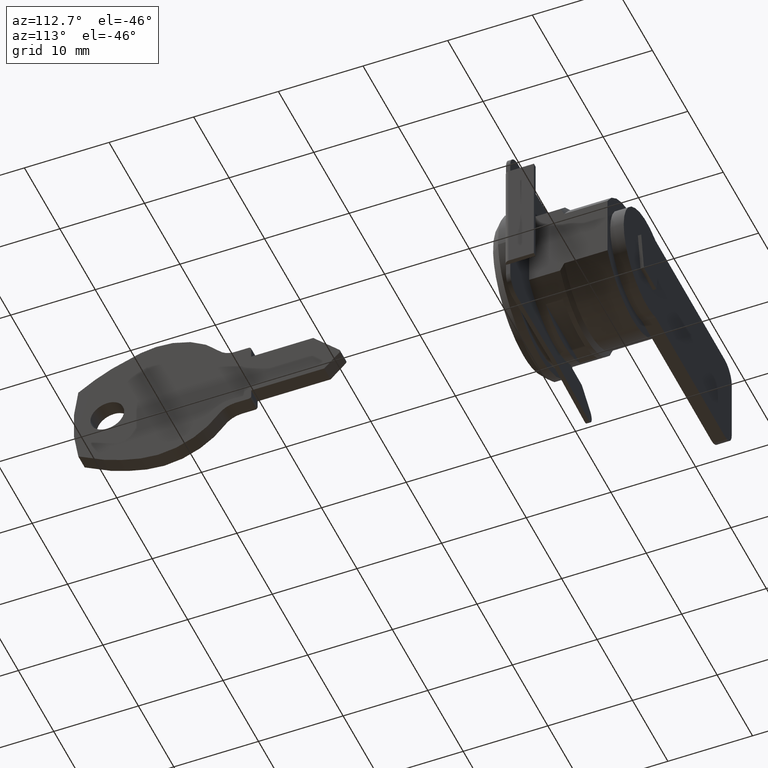
[diagram: clean part render]
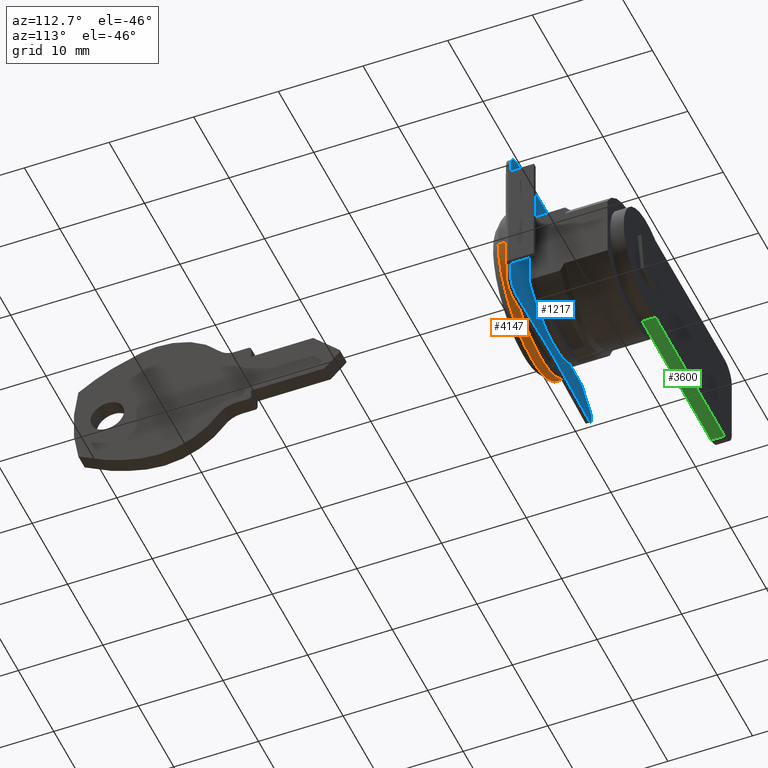
[diagram: same view with three faces highlighted in distinct colors, each labeled with its STEP entity id]
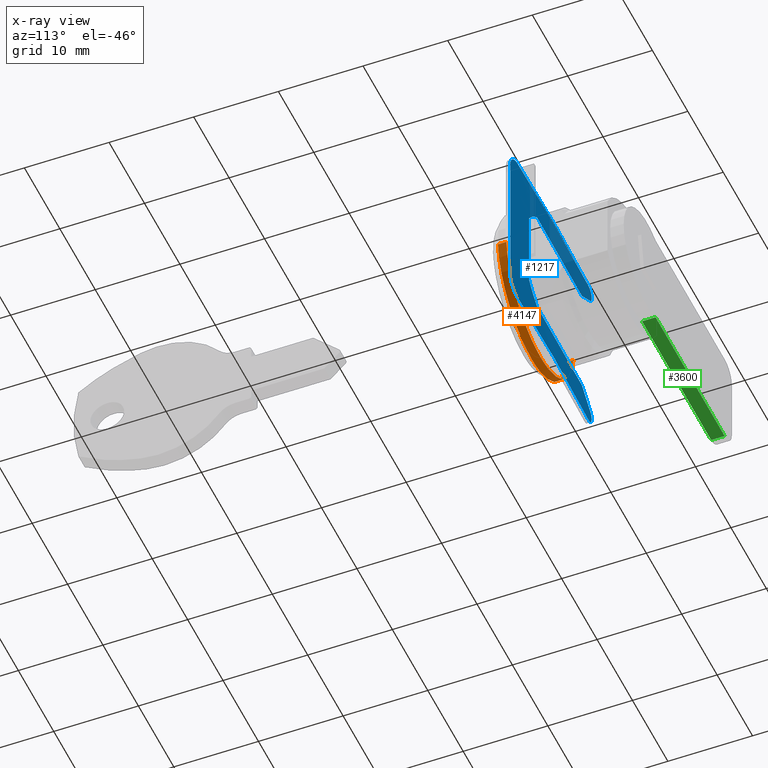
[diagram: x-ray of the same camera — body ghosted, the three highlighted faces saturated]
A machine part, auxiliary view with three faces highlighted in distinct colors.
The next image is the same camera in x-ray (body ghosted, the three faces saturated) — at least one of them is partly hidden behind the body in this view.
Their STEP definitions:

[orange] entity #4147 — the highlighted face is a freeform B-spline surface patch.
#4038=CARTESIAN_POINT('',(0.025000000000003,9.437957337639171,-1.083956315033412));
#4039=CARTESIAN_POINT('',(0.025000000000003,8.529243949567675,-8.996081619175367));
#4040=CARTESIAN_POINT('',(0.025000000000003,0.579961125581135,-9.482280585007626));
#4041=CARTESIAN_POINT('',(0.025000000000003,-8.902319459426492,-10.062241710588760));
#4042=CARTESIAN_POINT('',(0.025000000000003,-9.482280585007626,-0.579961125581135));
#4043=CARTESIAN_POINT('',(-1.025625000000132,9.437957337639171,-1.083956315033412));
#4044=CARTESIAN_POINT('',(-1.025625000000132,8.529243949567675,-8.996081619175367));
#4045=CARTESIAN_POINT('',(-1.025625000000132,0.579961125581135,-9.482280585007626));
#4046=CARTESIAN_POINT('',(-1.025625000000132,-8.902319459426492,-10.062241710588760));
#4047=CARTESIAN_POINT('',(-1.025625000000132,-9.482280585007626,-0.579961125581135));
#4055=(BOUNDED_SURFACE()B_SPLINE_SURFACE(2,1,((#4038,#4043),(#4039,#4044),(#4040,#4045),(#4041,#4046),(#4042,#4047)),.UNSPECIFIED.,.F.,.F.,.U.)B_SPLINE_SURFACE_WITH_KNOTS((3,2,3),(2,2),(0.0,13.851301525756140,29.591416895933559),(0.0,1.0),.UNSPECIFIED.)GEOMETRIC_REPRESENTATION_ITEM()RATIONAL_B_SPLINE_SURFACE(((0.938140952186599,0.938140952186599),(0.742253967444162,0.742253967444162),(1.0,1.0),(0.707106781186548,0.707106781186548),(1.0,1.0)))REPRESENTATION_ITEM('')SURFACE());
#4056=CARTESIAN_POINT('',(-1.000000000000128,9.437957337632014,-1.083956315095217));
#4057=VERTEX_POINT('',#4056);
#4058=CARTESIAN_POINT('',(-1.000000000000128,0.0,-9.499999999999771));
#4059=VERTEX_POINT('',#4058);
#4060=CARTESIAN_POINT('',(-1.000000000000128,9.437957337632014,-1.083956315095217));
#4061=CARTESIAN_POINT('',(-1.000000000000128,8.471368554217783,-9.499999999999771));
#4062=CARTESIAN_POINT('',(-1.000000000000128,0.0,-9.499999999999771));
#4070=(BOUNDED_CURVE()B_SPLINE_CURVE(2,(#4060,#4061,#4062),.UNSPECIFIED.,.F.,.U.)B_SPLINE_CURVE_WITH_KNOTS((3,3),(0.269767755878826,0.500000000000000),.UNSPECIFIED.)CURVE()GEOMETRIC_REPRESENTATION_ITEM()RATIONAL_B_SPLINE_CURVE((0.957343736456291,0.730266147778819,1.0))REPRESENTATION_ITEM(''));
#4071=EDGE_CURVE('',#4057,#4059,#4070,.T.);
#4072=ORIENTED_EDGE('',*,*,#4071,.F.);
#4073=CARTESIAN_POINT('',(3.328394E-017,9.437957337633479,-1.083956315083453));
#4074=VERTEX_POINT('',#4073);
#4075=CARTESIAN_POINT('',(3.328394E-017,9.437957337633479,-1.083956315083453));
#4076=CARTESIAN_POINT('',(-1.000000000000128,9.437957337632014,-1.083956315095217));
#4077=QUASI_UNIFORM_CURVE('',1,(#4075,#4076),.UNSPECIFIED.,.F.,.U.);
#4078=EDGE_CURVE('',#4074,#4057,#4077,.T.);
#4079=ORIENTED_EDGE('',*,*,#4078,.F.);
#4080=CARTESIAN_POINT('',(0.0,0.0,-9.500000000000000));
#4081=VERTEX_POINT('',#4080);
#4082=CARTESIAN_POINT('',(3.328394E-017,9.437957337633479,-1.083956315083452));
#4083=CARTESIAN_POINT('',(0.0,8.471368554239268,-9.499999999999998));
#4084=CARTESIAN_POINT('',(0.0,0.0,-9.500000000000000));
#4092=(BOUNDED_CURVE()B_SPLINE_CURVE(2,(#4082,#4083,#4084),.UNSPECIFIED.,.F.,.U.)B_SPLINE_CURVE_WITH_KNOTS((3,3),(0.269767755878404,0.500000000000000),.UNSPECIFIED.)CURVE()GEOMETRIC_REPRESENTATION_ITEM()RATIONAL_B_SPLINE_CURVE((0.957343736457124,0.730266147778324,1.0))REPRESENTATION_ITEM(''));
#4093=EDGE_CURVE('',#4074,#4081,#4092,.T.);
#4094=ORIENTED_EDGE('',*,*,#4093,.T.);
#4095=CARTESIAN_POINT('',(3.469447E-017,-9.482280585005249,-0.579961125620899));
#4096=VERTEX_POINT('',#4095);
#4097=CARTESIAN_POINT('',(0.0,0.0,-9.500000000000000));
#4098=CARTESIAN_POINT('',(0.0,-8.936707635529032,-9.500000000000000));
#4099=CARTESIAN_POINT('',(3.469447E-017,-9.482280585005249,-0.579961125620899));
#4107=(BOUNDED_CURVE()B_SPLINE_CURVE(2,(#4097,#4098,#4099),.UNSPECIFIED.,.F.,.U.)B_SPLINE_CURVE_WITH_KNOTS((3,3),(0.500000000000000,0.739332962240522),.UNSPECIFIED.)CURVE()GEOMETRIC_REPRESENTATION_ITEM()RATIONAL_B_SPLINE_CURVE((1.0,0.719603993284861,0.976072041670101))REPRESENTATION_ITEM(''));
#4108=EDGE_CURVE('',#4081,#4096,#4107,.T.);
#4109=ORIENTED_EDGE('',*,*,#4108,.T.);
#4110=CARTESIAN_POINT('',(-1.000000000000128,-9.482280633114877,-0.579960339032487));
#4111=VERTEX_POINT('',#4110);
#4112=CARTESIAN_POINT('',(3.469447E-017,-9.482280585005249,-0.579961125620899));
#4113=CARTESIAN_POINT('',(-1.000000000000128,-9.482280633114877,-0.579960339032487));
#4114=QUASI_UNIFORM_CURVE('',1,(#4112,#4113),.UNSPECIFIED.,.F.,.U.);
#4115=EDGE_CURVE('',#4096,#4111,#4114,.T.);
#4116=ORIENTED_EDGE('',*,*,#4115,.T.);
#4117=CARTESIAN_POINT('',(-0.999999999998293,-9.470714670465206,-0.745361409428668));
#4118=VERTEX_POINT('',#4117);
#4119=CARTESIAN_POINT('',(-0.999999999998293,-9.470714670465206,-0.745361409428668));
#4120=CARTESIAN_POINT('',(-1.000000000000128,-9.477219402771846,-0.662710948966291));
#4121=CARTESIAN_POINT('',(-1.000000000000128,-9.482280633114877,-0.579960339032487));
#4129=(BOUNDED_CURVE()B_SPLINE_CURVE(2,(#4119,#4120,#4121),.UNSPECIFIED.,.F.,.U.)B_SPLINE_CURVE_WITH_KNOTS((3,3),(0.736331300632260,0.739332990867245),.UNSPECIFIED.)CURVE()GEOMETRIC_REPRESENTATION_ITEM()RATIONAL_B_SPLINE_CURVE((0.969723356170757,0.972855505434191,0.976072103022625))REPRESENTATION_ITEM(''));
#4130=EDGE_CURVE('',#4118,#4111,#4129,.T.);
#4131=ORIENTED_EDGE('',*,*,#4130,.F.);
#4132=CARTESIAN_POINT('',(-1.000000000000128,0.0,-9.499999999999771));
#4133=CARTESIAN_POINT('',(-1.000000000000128,-8.781709670726698,-9.499999999999771));
#4134=CARTESIAN_POINT('',(-0.999999999998293,-9.470714670465206,-0.745361409428668));
#4142=(BOUNDED_CURVE()B_SPLINE_CURVE(2,(#4132,#4133,#4134),.UNSPECIFIED.,.F.,.U.)B_SPLINE_CURVE_WITH_KNOTS((3,3),(0.500000000000000,0.736331300632260),.UNSPECIFIED.)CURVE()GEOMETRIC_REPRESENTATION_ITEM()RATIONAL_B_SPLINE_CURVE((1.0,0.723120658605791,0.969723356170757))REPRESENTATION_ITEM(''));
#4143=EDGE_CURVE('',#4059,#4118,#4142,.T.);
#4144=ORIENTED_EDGE('',*,*,#4143,.F.);
#4145=EDGE_LOOP('',(#4072,#4079,#4094,#4109,#4116,#4131,#4144));
#4146=FACE_OUTER_BOUND('',#4145,.T.);
#4147=ADVANCED_FACE('',(#4146),#4055,.T.);

[blue] entity #1217 — the highlighted face is a freeform B-spline surface patch.
#155=CARTESIAN_POINT('',(1.533278711939535,10.0,10.500000000000000));
#156=VERTEX_POINT('',#155);
#164=CARTESIAN_POINT('',(1.500000000000525,11.0,9.500000000000000));
#165=VERTEX_POINT('',#164);
#166=CARTESIAN_POINT('',(1.533278711939535,10.0,10.500000000000000));
#167=CARTESIAN_POINT('',(1.529856346436006,10.107742023837600,10.500000000009930));
#168=CARTESIAN_POINT('',(1.526473100540746,10.212593911290000,10.483029653974940));
#169=CARTESIAN_POINT('',(1.522302234544356,10.340076613222710,10.440781118270230));
#170=CARTESIAN_POINT('',(1.521474326880014,10.365290613249790,10.431276298007999));
#171=CARTESIAN_POINT('',(1.519854065763446,10.414471154806870,10.410453920703040));
#172=CARTESIAN_POINT('',(1.519058333823623,10.438541051469450,10.399103410184670));
#173=CARTESIAN_POINT('',(1.516714544695119,10.509213983307539,10.362277839583919));
#174=CARTESIAN_POINT('',(1.515209569935022,10.554290178656380,10.334046646901070));
#175=CARTESIAN_POINT('',(1.513044938715569,10.618764973222770,10.286032425010450));
#176=CARTESIAN_POINT('',(1.512337516154372,10.639772728240700,10.269029212259390));
#177=CARTESIAN_POINT('',(1.510979768827128,10.679986887427420,10.233711620663509));
#178=CARTESIAN_POINT('',(1.510326308486251,10.699286978266180,10.215334268571141));
#179=CARTESIAN_POINT('',(1.508441814628657,10.754813971217921,10.158088969705300));
#180=CARTESIAN_POINT('',(1.507286181952489,10.788682646486830,10.117121183908999));
#181=CARTESIAN_POINT('',(1.505711073536585,10.834676683710819,10.051387304182841));
#182=CARTESIAN_POINT('',(1.505210502433258,10.849262188280370,10.028650447815780));
#183=CARTESIAN_POINT('',(1.504278106158944,10.876384374352281,9.982356506087642));
#184=CARTESIAN_POINT('',(1.503845685468256,10.888938778164970,9.958795858534341));
#185=CARTESIAN_POINT('',(1.502648297834012,10.923653937255709,9.886902465329669));
#186=CARTESIAN_POINT('',(1.501982615896451,10.942885072051039,9.837365842889790));
#187=CARTESIAN_POINT('',(1.500923111635423,10.973447903958821,9.735046402161483));
#188=CARTESIAN_POINT('',(1.500530627378306,10.984740857365280,9.681995021680770));
#189=CARTESIAN_POINT('',(1.500097062688470,10.997211155596890,9.586245177449424));
#190=CARTESIAN_POINT('',(1.499999865615068,11.000004229441370,9.543195670827748));
#191=CARTESIAN_POINT('',(1.500000000000525,11.0,9.500000000000000));
#192=B_SPLINE_CURVE_WITH_KNOTS('',3,(#166,#167,#168,#169,#170,#171,#172,#173,#174,#175,#176,#177,#178,#179,#180,#181,#182,#183,#184,#185,#186,#187,#188,#189,#190,#191),.UNSPECIFIED.,.F.,.U.,(4,2,2,2,2,2,2,2,2,2,2,2,4),(0.0,0.124999999999996,0.156249999999996,0.187499999999995,0.249999999999995,0.281249999999994,0.312499999999992,0.374999999999989,0.406249999999989,0.437499999999988,0.499999999999990,0.562499999999991,0.613240821378535),.UNSPECIFIED.);
#193=EDGE_CURVE('',#156,#165,#192,.T.);
#252=CARTESIAN_POINT('',(1.500000000000475,11.0,-9.500000000000000));
#253=VERTEX_POINT('',#252);
#269=CARTESIAN_POINT('',(1.533278711939590,10.0,-10.500000000000000));
#270=VERTEX_POINT('',#269);
#271=CARTESIAN_POINT('',(1.500000000000475,11.0,-9.500000000000000));
#272=CARTESIAN_POINT('',(1.500000025624124,10.999999272886100,-9.516227616813300));
#273=CARTESIAN_POINT('',(1.500013728389029,10.999605422694881,-9.532485281798905));
#274=CARTESIAN_POINT('',(1.500086564943741,10.997511789764451,-9.575457767810487));
#275=CARTESIAN_POINT('',(1.500169175551710,10.995137127707199,-9.602050089784225));
#276=CARTESIAN_POINT('',(1.500525727021712,10.984881979176050,-9.681229851560838));
#277=CARTESIAN_POINT('',(1.500907767569112,10.973889913653720,-9.733223821932057));
#278=CARTESIAN_POINT('',(1.501960823660550,10.943514492847180,-9.835611314319964));
#279=CARTESIAN_POINT('',(1.502637848560323,10.923956338604761,-9.886195127471360));
#280=CARTESIAN_POINT('',(1.504233846922271,10.877685734591770,-9.982192227708584));
#281=CARTESIAN_POINT('',(1.505156084588453,10.850879839257409,-10.028060252549951));
#282=CARTESIAN_POINT('',(1.507244035132504,10.789916185297340,-10.115529161427339));
#283=CARTESIAN_POINT('',(1.508420790598978,10.755431748885179,-10.157397030210110));
#284=CARTESIAN_POINT('',(1.510940297338669,10.681197392066460,-10.234042042688300));
#285=CARTESIAN_POINT('',(1.512287837044869,10.641310225517101,-10.269126776154859));
#286=CARTESIAN_POINT('',(1.514435394859961,10.577352029761100,-10.316929583101860));
#287=CARTESIAN_POINT('',(1.515172392483562,10.555341497541340,-10.332056032383720));
#288=CARTESIAN_POINT('',(1.516689037260168,10.509902329467639,-10.360651433827639));
#289=CARTESIAN_POINT('',(1.517467509909382,10.486508006232640,-10.374084887281180));
#290=CARTESIAN_POINT('',(1.519824001937095,10.415456743445750,-10.411181329552850));
#291=CARTESIAN_POINT('',(1.521436248108873,10.366538343211950,-10.431921302857370));
#292=CARTESIAN_POINT('',(1.523912297157789,10.290868383896800,-10.457132497506690));
#293=CARTESIAN_POINT('',(1.524747318998329,10.265261189862260,-10.464548431431631));
#294=CARTESIAN_POINT('',(1.526436708348581,10.213262401237291,-10.477361889809981));
#295=CARTESIAN_POINT('',(1.527293362837921,10.186799337675421,-10.482764869645480));
#296=CARTESIAN_POINT('',(1.529857112425849,10.107302946869600,-10.495675106514661));
#297=CARTESIAN_POINT('',(1.531567532813429,10.053870891761649,-10.500000000002411));
#298=CARTESIAN_POINT('',(1.533278711939590,10.0,-10.500000000000000));
#299=B_SPLINE_CURVE_WITH_KNOTS('',3,(#271,#272,#273,#274,#275,#276,#277,#278,#279,#280,#281,#282,#283,#284,#285,#286,#287,#288,#289,#290,#291,#292,#293,#294,#295,#296,#297,#298),.UNSPECIFIED.,.F.,.U.,(4,2,2,2,2,2,2,2,2,2,2,2,2,4),(0.387385123971727,0.406249999999989,0.437499999999990,0.499999999999990,0.562499999999990,0.624999999999991,0.687499999999991,0.749999999999991,0.781249999999993,0.812499999999995,0.874999999999998,0.906249999999999,0.937500000000000,1.0),.UNSPECIFIED.);
#300=EDGE_CURVE('',#253,#270,#299,.T.);
#364=CARTESIAN_POINT('',(1.671760568319135,-4.821825380496490,7.0));
#365=VERTEX_POINT('',#364);
#371=CARTESIAN_POINT('',(1.636119010082040,-7.0,4.821825380496470));
#372=VERTEX_POINT('',#371);
#373=CARTESIAN_POINT('',(1.636119010082040,-7.0,4.821825380496470));
#374=CARTESIAN_POINT('',(1.641940441234167,-6.703858317080147,5.251743848474170));
#375=CARTESIAN_POINT('',(1.648041218533252,-6.373437009846585,5.647378121186010));
#376=CARTESIAN_POINT('',(1.660140159858111,-5.647380739507115,6.373434689802404));
#377=CARTESIAN_POINT('',(1.666142003933715,-5.251745814043654,6.703856963132611));
#378=CARTESIAN_POINT('',(1.671760568319145,-4.821825380496501,7.0));
#379=B_SPLINE_CURVE_WITH_KNOTS('',3,(#373,#374,#375,#376,#377,#378),.UNSPECIFIED.,.F.,.U.,(4,2,4),(0.0,0.500000000000000,1.0),.UNSPECIFIED.);
#380=EDGE_CURVE('',#372,#365,#379,.T.);
#404=CARTESIAN_POINT('',(1.515461242351355,10.546678350318420,-8.662657309524271));
#405=VERTEX_POINT('',#404);
#413=CARTESIAN_POINT('',(1.515461242351355,10.546678350318420,-8.662657309524271));
#414=CARTESIAN_POINT('',(1.512445838912854,10.636905737676701,-8.721564193258582));
#415=CARTESIAN_POINT('',(1.509784841713954,10.715440984928851,-8.793108803764746));
#416=CARTESIAN_POINT('',(1.506928899803901,10.799109696210291,-8.898213733960560));
#417=CARTESIAN_POINT('',(1.506384263577737,10.815028104527210,-8.919962198130815));
#418=CARTESIAN_POINT('',(1.505362723724283,10.844829753358930,-8.964297108646781));
#419=CARTESIAN_POINT('',(1.504883496703545,10.858781074877260,-8.986967157281550));
#420=CARTESIAN_POINT('',(1.503540003458125,10.897830681920860,-9.056461731756203));
#421=CARTESIAN_POINT('',(1.502769340437090,10.920142729574939,-9.104761095345948));
#422=CARTESIAN_POINT('',(1.501809421432879,10.947880257913710,-9.180243550695309));
#423=CARTESIAN_POINT('',(1.501522027399987,10.956173502699190,-9.205973764806016));
#424=CARTESIAN_POINT('',(1.501023998526497,10.970533327021620,-9.257544822230328));
#425=CARTESIAN_POINT('',(1.500811829559563,10.976644268008590,-9.283491007338910));
#426=CARTESIAN_POINT('',(1.500284203204682,10.991833141566721,-9.361802071614720));
#427=CARTESIAN_POINT('',(1.500076990131048,10.997787078054310,-9.414636461202756));
#428=CARTESIAN_POINT('',(1.500005863465107,10.999831450936780,-9.478705517694243));
#429=CARTESIAN_POINT('',(1.499999984204304,11.000000446503289,-9.489346283234356));
#430=CARTESIAN_POINT('',(1.500000000000475,11.0,-9.500000000000000));
#431=B_SPLINE_CURVE_WITH_KNOTS('',3,(#413,#414,#415,#416,#417,#418,#419,#420,#421,#422,#423,#424,#425,#426,#427,#428,#429,#430),.UNSPECIFIED.,.F.,.U.,(4,2,2,2,2,2,2,2,4),(0.0,0.124999999999994,0.156249999999994,0.187499999999993,0.249999999999992,0.281249999999991,0.312499999999990,0.374999999999989,0.387385123971727),.UNSPECIFIED.);
#432=EDGE_CURVE('',#405,#253,#431,.T.);
#489=CARTESIAN_POINT('',(1.590752233616710,8.0,-7.0));
#490=VERTEX_POINT('',#489);
#496=CARTESIAN_POINT('',(1.515461242351355,10.546678350318420,-8.662657309524271));
#497=CARTESIAN_POINT('',(1.558011457501674,9.273484273399376,-7.831423181825927));
#498=CARTESIAN_POINT('',(1.590752233616710,8.0,-7.0));
#506=(BOUNDED_CURVE()B_SPLINE_CURVE(2,(#496,#497,#498),.UNSPECIFIED.,.F.,.U.)CURVE()GEOMETRIC_REPRESENTATION_ITEM()QUASI_UNIFORM_CURVE()RATIONAL_B_SPLINE_CURVE((1.0,0.999992581689930,1.0))REPRESENTATION_ITEM(''));
#507=EDGE_CURVE('',#405,#490,#506,.T.);
#533=CARTESIAN_POINT('',(1.671760568319190,-4.821825380496460,-7.0));
#534=VERTEX_POINT('',#533);
#540=CARTESIAN_POINT('',(1.590752233616710,8.0,-7.0));
#541=CARTESIAN_POINT('',(1.755554068791409,1.589872622823108,-7.0));
#542=CARTESIAN_POINT('',(1.671760568319190,-4.821825380496460,-7.0));
#550=(BOUNDED_CURVE()B_SPLINE_CURVE(2,(#540,#541,#542),.UNSPECIFIED.,.F.,.U.)CURVE()GEOMETRIC_REPRESENTATION_ITEM()QUASI_UNIFORM_CURVE()RATIONAL_B_SPLINE_CURVE((1.0,0.999812096954692,1.0))REPRESENTATION_ITEM(''));
#551=EDGE_CURVE('',#490,#534,#550,.T.);
#582=CARTESIAN_POINT('',(1.636119010081980,-7.0,-4.821825380496480));
#583=VERTEX_POINT('',#582);
#589=CARTESIAN_POINT('',(1.671760568319190,-4.821825380496460,-7.0));
#590=CARTESIAN_POINT('',(1.666142003933760,-5.251745814043622,-6.703856963132610));
#591=CARTESIAN_POINT('',(1.660140159858129,-5.647380739507105,-6.373434689802414));
#592=CARTESIAN_POINT('',(1.648041218533269,-6.373437009846585,-5.647378121186008));
#593=CARTESIAN_POINT('',(1.641940441234157,-6.703858317080142,-5.251743848474172));
#594=CARTESIAN_POINT('',(1.636119010081980,-7.0,-4.821825380496480));
#595=B_SPLINE_CURVE_WITH_KNOTS('',3,(#589,#590,#591,#592,#593,#594),.UNSPECIFIED.,.F.,.U.,(4,2,4),(0.0,0.500000000000000,1.0),.UNSPECIFIED.);
#596=EDGE_CURVE('',#534,#583,#595,.T.);
#613=CARTESIAN_POINT('',(1.636119010081980,-7.0,-4.821825380496480));
#614=CARTESIAN_POINT('',(1.636119010082040,-7.0,4.821825380496470));
#615=QUASI_UNIFORM_CURVE('',1,(#613,#614),.UNSPECIFIED.,.F.,.U.);
#616=EDGE_CURVE('',#583,#372,#615,.T.);
#642=CARTESIAN_POINT('',(1.590752233616710,8.0,7.0));
#643=VERTEX_POINT('',#642);
#649=CARTESIAN_POINT('',(1.671760568319135,-4.821825380496490,7.0));
#650=CARTESIAN_POINT('',(1.755554068791410,1.589872622822743,7.000000000000001));
#651=CARTESIAN_POINT('',(1.590752233616710,8.0,7.0));
#659=(BOUNDED_CURVE()B_SPLINE_CURVE(2,(#649,#650,#651),.UNSPECIFIED.,.F.,.U.)CURVE()GEOMETRIC_REPRESENTATION_ITEM()QUASI_UNIFORM_CURVE()RATIONAL_B_SPLINE_CURVE((1.0,0.999812096954692,1.0))REPRESENTATION_ITEM(''));
#660=EDGE_CURVE('',#365,#643,#659,.T.);
#686=CARTESIAN_POINT('',(1.515461243579095,10.546678500000001,8.662657500000021));
#687=VERTEX_POINT('',#686);
#693=CARTESIAN_POINT('',(1.590752233616710,8.0,7.0));
#694=CARTESIAN_POINT('',(1.558011457974518,9.273484255010057,7.831423419848516));
#695=CARTESIAN_POINT('',(1.515461243579095,10.546678500000001,8.662657500000021));
#703=(BOUNDED_CURVE()B_SPLINE_CURVE(2,(#693,#694,#695),.UNSPECIFIED.,.F.,.U.)CURVE()GEOMETRIC_REPRESENTATION_ITEM()QUASI_UNIFORM_CURVE()RATIONAL_B_SPLINE_CURVE((1.0,0.999992581692577,1.0))REPRESENTATION_ITEM(''));
#704=EDGE_CURVE('',#643,#687,#703,.T.);
#739=CARTESIAN_POINT('',(1.500000000000525,11.0,9.500000000000000));
#740=CARTESIAN_POINT('',(1.500000030299507,10.999999046436610,9.489989409615992));
#741=CARTESIAN_POINT('',(1.500005288076020,10.999847855323280,9.479970969050022));
#742=CARTESIAN_POINT('',(1.500071522652641,10.997944121990299,9.416654961173050));
#743=CARTESIAN_POINT('',(1.500279473192698,10.991969086850000,9.362732314685680));
#744=CARTESIAN_POINT('',(1.500982751651077,10.971723969682170,9.257929637980869));
#745=CARTESIAN_POINT('',(1.501476146214648,10.957509470390960,9.206728881218886));
#746=CARTESIAN_POINT('',(1.502424999423034,10.930093160528070,9.131715875416376));
#747=CARTESIAN_POINT('',(1.502776229511493,10.919933861923299,9.107010960656972));
#748=CARTESIAN_POINT('',(1.503549821664562,10.897521733473120,9.058215362229777));
#749=CARTESIAN_POINT('',(1.503972014189787,10.885273543002681,9.034163791805762));
#750=CARTESIAN_POINT('',(1.505321496452128,10.846051278291741,8.964226354146726));
#751=CARTESIAN_POINT('',(1.506337867664201,10.816421931999921,8.920101180215861));
#752=CARTESIAN_POINT('',(1.508030603680036,10.766835297301030,8.857606162992825));
#753=CARTESIAN_POINT('',(1.508623010160324,10.749445239166800,8.837392875630458));
#754=CARTESIAN_POINT('',(1.509864576568163,10.712905865392610,8.798229547010957));
#755=CARTESIAN_POINT('',(1.510515709504518,10.693697926163381,8.779233977381157));
#756=CARTESIAN_POINT('',(1.512527843847699,10.634176575283620,8.724949044503648));
#757=CARTESIAN_POINT('',(1.513953538792776,10.591792276257870,8.692111133668046));
#758=CARTESIAN_POINT('',(1.515461243579095,10.546678500000001,8.662657500000021));
#759=B_SPLINE_CURVE_WITH_KNOTS('',3,(#739,#740,#741,#742,#743,#744,#745,#746,#747,#748,#749,#750,#751,#752,#753,#754,#755,#756,#757,#758),.UNSPECIFIED.,.F.,.U.,(4,2,2,2,2,2,2,2,2,4),(0.613240821378535,0.624999999999993,0.687499999999994,0.749999999999996,0.781249999999996,0.812499999999996,0.874999999999997,0.906249999999998,0.937499999999999,1.0),.UNSPECIFIED.);
#760=EDGE_CURVE('',#165,#687,#759,.T.);
#827=CARTESIAN_POINT('',(1.499999999999148,-12.000000000000220,8.500000000000000));
#828=VERTEX_POINT('',#827);
#834=CARTESIAN_POINT('',(1.563529179400780,-10.0,10.500000000000000));
#835=VERTEX_POINT('',#834);
#836=CARTESIAN_POINT('',(1.563529179400780,-10.0,10.500000000000000));
#837=CARTESIAN_POINT('',(1.559735022439801,-10.132032080968809,10.500000000000000));
#838=CARTESIAN_POINT('',(1.555925155518497,-10.261858063868489,10.487053978581001));
#839=CARTESIAN_POINT('',(1.550194266102001,-10.453423635252740,10.449011363960221));
#840=CARTESIAN_POINT('',(1.548281390425564,-10.516746000629761,10.433203508638890));
#841=CARTESIAN_POINT('',(1.544453067158152,-10.642300949712171,10.395191738315519));
#842=CARTESIAN_POINT('',(1.542531976077038,-10.704709407546339,10.372878813828480));
#843=CARTESIAN_POINT('',(1.536894171911385,-10.886260629742390,10.297693994442920));
#844=CARTESIAN_POINT('',(1.533262404002086,-11.001076101366200,10.236347831383361));
#845=CARTESIAN_POINT('',(1.528031248507676,-11.164057008592779,10.127647249503131));
#846=CARTESIAN_POINT('',(1.526318488826174,-11.216999115663141,10.088475823814900));
#847=CARTESIAN_POINT('',(1.522998306283291,-11.318920484773720,10.004922272150139));
#848=CARTESIAN_POINT('',(1.521406467988818,-11.367424992363880,9.960958588686847));
#849=CARTESIAN_POINT('',(1.516837727901869,-11.505801012452141,9.822712267008594));
#850=CARTESIAN_POINT('',(1.514065578997717,-11.588602493291400,9.722134436058438));
#851=CARTESIAN_POINT('',(1.510361342088182,-11.698297458874171,9.558349354681353));
#852=CARTESIAN_POINT('',(1.509204498359875,-11.732374481099789,9.501579095897107));
#853=CARTESIAN_POINT('',(1.507099779479915,-11.794139861679520,9.386196470787620));
#854=CARTESIAN_POINT('',(1.505189485179682,-11.849948064224829,9.268365627660513));
#855=CARTESIAN_POINT('',(1.503670750051860,-11.894024800800670,9.145713388675448));
#856=CARTESIAN_POINT('',(1.502354034373666,-11.932157451384990,9.020618199278696));
#857=CARTESIAN_POINT('',(1.501794908426830,-11.948302909354160,8.956571006427691));
#858=CARTESIAN_POINT('',(1.500451623464782,-11.987041476081160,8.762738300151190));
#859=CARTESIAN_POINT('',(1.499999999999130,-12.0,8.632088317176621));
#860=CARTESIAN_POINT('',(1.499999999999148,-12.000000000000220,8.500000000000000));
#861=B_SPLINE_CURVE_WITH_KNOTS('',3,(#836,#837,#838,#839,#840,#841,#842,#843,#844,#845,#846,#847,#848,#849,#850,#851,#852,#853,#854,#855,#856,#857,#858,#859,#860),.UNSPECIFIED.,.F.,.U.,(4,2,2,2,2,2,2,2,2,1,2,2,4),(0.0,0.125000000000001,0.187500000000002,0.250000000000002,0.375000000000001,0.437500000000000,0.500000000000000,0.624999999999998,0.687499999999998,0.749999999999999,0.812499999999999,0.874999999999999,1.0),.UNSPECIFIED.);
#862=EDGE_CURVE('',#835,#828,#861,.T.);
#886=CARTESIAN_POINT('',(1.499999999999170,-12.0,-8.500000000000000));
#887=VERTEX_POINT('',#886);
#923=CARTESIAN_POINT('',(1.563529179400780,-10.0,-10.500000000000000));
#924=VERTEX_POINT('',#923);
#930=CARTESIAN_POINT('',(1.499999999999170,-12.0,-8.500000000000000));
#931=CARTESIAN_POINT('',(1.499999999999170,-12.0,-8.632087170980094));
#932=CARTESIAN_POINT('',(1.500451526729585,-11.987043270655070,-8.761966124212783));
#933=CARTESIAN_POINT('',(1.501771815274379,-11.948969370015670,-8.953607977402712));
#934=CARTESIAN_POINT('',(1.502319751847210,-11.933148512647749,-9.016955231331522));
#935=CARTESIAN_POINT('',(1.503633498404161,-11.895105305776060,-9.142558762427720));
#936=CARTESIAN_POINT('',(1.504402967846305,-11.872775754534739,-9.204984918201038));
#937=CARTESIAN_POINT('',(1.506985880571433,-11.797541919522940,-9.386574359100303));
#938=CARTESIAN_POINT('',(1.509082400035334,-11.736158610915901,-9.501408493200353));
#939=CARTESIAN_POINT('',(1.512755748890424,-11.627397059826610,-9.664407674655026));
#940=CARTESIAN_POINT('',(1.514073744312835,-11.588196485694001,-9.717363463729127));
#941=CARTESIAN_POINT('',(1.516866684308605,-11.504623660370919,-9.819260975184722));
#942=CARTESIAN_POINT('',(1.518328297902295,-11.460650957050481,-9.867753468299986));
#943=CARTESIAN_POINT('',(1.522894018032528,-11.322379215039870,-10.006093053282880));
#944=CARTESIAN_POINT('',(1.526177360611689,-11.221786609314821,-10.088869727496260));
#945=CARTESIAN_POINT('',(1.531436365344091,-11.057982138610800,-10.198526177836030));
#946=CARTESIAN_POINT('',(1.533244707715723,-11.001229001162580,-10.232575913941419));
#947=CARTESIAN_POINT('',(1.536889049881592,-10.885878034846380,-10.294296217940531));
#948=CARTESIAN_POINT('',(1.540580527245291,-10.768078649809850,-10.350065032543890));
#949=CARTESIAN_POINT('',(1.544356187382292,-10.645456563417110,-10.394111726897631));
#950=CARTESIAN_POINT('',(1.548170893060944,-10.520390447868550,-10.432218204809301));
#951=CARTESIAN_POINT('',(1.550106223619174,-10.456351955634940,-10.448353044887369));
#952=CARTESIAN_POINT('',(1.555903257060274,-10.262618646379840,-10.487052648096800));
#953=CARTESIAN_POINT('',(1.559735058575993,-10.132030823472780,-10.500000000000000));
#954=CARTESIAN_POINT('',(1.563529179400775,-10.0,-10.500000000000000));
#955=B_SPLINE_CURVE_WITH_KNOTS('',3,(#930,#931,#932,#933,#934,#935,#936,#937,#938,#939,#940,#941,#942,#943,#944,#945,#946,#947,#948,#949,#950,#951,#952,#953,#954),.UNSPECIFIED.,.F.,.U.,(4,2,2,2,2,2,2,2,2,1,2,2,4),(0.0,0.124999999999999,0.187499999999998,0.249999999999998,0.374999999999996,0.437499999999996,0.499999999999995,0.624999999999997,0.687499999999997,0.749999999999998,0.812499999999998,0.874999999999999,1.0),.UNSPECIFIED.);
#956=EDGE_CURVE('',#887,#924,#955,.T.);
#974=CARTESIAN_POINT('',(1.499999999999170,-12.0,-7.0));
#975=VERTEX_POINT('',#974);
#1004=CARTESIAN_POINT('',(1.499999999999170,-12.0,-8.500000000000000));
#1005=CARTESIAN_POINT('',(1.499999999999170,-12.0,-7.0));
#1006=QUASI_UNIFORM_CURVE('',1,(#1004,#1005),.UNSPECIFIED.,.F.,.U.);
#1007=EDGE_CURVE('',#887,#975,#1006,.T.);
#1017=CARTESIAN_POINT('',(1.499999999999170,-12.0,7.0));
#1018=VERTEX_POINT('',#1017);
#1055=CARTESIAN_POINT('',(1.499999999999148,-12.000000000000220,8.500000000000000));
#1056=CARTESIAN_POINT('',(1.499999999999170,-12.0,7.0));
#1057=QUASI_UNIFORM_CURVE('',1,(#1055,#1056),.UNSPECIFIED.,.F.,.U.);
#1058=EDGE_CURVE('',#828,#1018,#1057,.T.);
#1083=CARTESIAN_POINT('',(1.563529179400780,-10.0,10.500000000000000));
#1084=CARTESIAN_POINT('',(1.850908620293967,0.000457545390425,10.500000000000004));
#1085=CARTESIAN_POINT('',(1.533278711939535,10.0,10.500000000000000));
#1093=(BOUNDED_CURVE()B_SPLINE_CURVE(2,(#1083,#1084,#1085),.UNSPECIFIED.,.F.,.U.)CURVE()GEOMETRIC_REPRESENTATION_ITEM()QUASI_UNIFORM_CURVE()RATIONAL_B_SPLINE_CURVE((1.0,0.999542768391556,1.0))REPRESENTATION_ITEM(''));
#1094=EDGE_CURVE('',#835,#156,#1093,.T.);
#1118=CARTESIAN_POINT('',(1.563529179400780,-10.0,-10.500000000000000));
#1119=CARTESIAN_POINT('',(1.850908620293967,0.000457545390425,-10.500000000000004));
#1120=CARTESIAN_POINT('',(1.533278711939590,10.0,-10.500000000000000));
#1128=(BOUNDED_CURVE()B_SPLINE_CURVE(2,(#1118,#1119,#1120),.UNSPECIFIED.,.F.,.U.)CURVE()GEOMETRIC_REPRESENTATION_ITEM()QUASI_UNIFORM_CURVE()RATIONAL_B_SPLINE_CURVE((1.0,0.999542768391556,1.0))REPRESENTATION_ITEM(''));
#1129=EDGE_CURVE('',#924,#270,#1128,.T.);
#1162=CARTESIAN_POINT('',(1.499999999999170,-12.0,7.0));
#1163=CARTESIAN_POINT('',(1.499999999999170,-12.0,-7.0));
#1164=QUASI_UNIFORM_CURVE('',1,(#1162,#1163),.UNSPECIFIED.,.F.,.U.);
#1165=EDGE_CURVE('',#1018,#975,#1164,.T.);
#1183=CARTESIAN_POINT('',(1.458077807130747,-13.147565304242159,11.025000000000000));
#1184=CARTESIAN_POINT('',(1.458077807130747,-13.147565304242159,-11.038125000000001));
#1185=CARTESIAN_POINT('',(1.942117805991004,-0.499516074463515,11.025000000000000));
#1186=CARTESIAN_POINT('',(1.942117805991004,-0.499516074463515,-11.038124999999997));
#1187=CARTESIAN_POINT('',(1.458040820293727,12.148531739777191,11.024999999999997));
#1188=CARTESIAN_POINT('',(1.458040820293727,12.148531739777191,-11.038125000000001));
#1196=(BOUNDED_SURFACE()B_SPLINE_SURFACE(1,2,((#1183,#1185,#1187),(#1184,#1186,#1188)),.UNSPECIFIED.,.F.,.F.,.U.)B_SPLINE_SURFACE_WITH_KNOTS((2,2),(3,3),(0.0,22.063124999999999),(8.606891858243943,33.915600550508501),.UNSPECIFIED.)GEOMETRIC_REPRESENTATION_ITEM()RATIONAL_B_SPLINE_SURFACE(((0.999034909815546,0.997864442931507,0.998155206904119),(0.999034909815546,0.997864442931507,0.998155206904119)))REPRESENTATION_ITEM('')SURFACE());
#1197=ORIENTED_EDGE('',*,*,#193,.F.);
#1198=ORIENTED_EDGE('',*,*,#1094,.F.);
#1199=ORIENTED_EDGE('',*,*,#862,.T.);
#1200=ORIENTED_EDGE('',*,*,#1058,.T.);
#1201=ORIENTED_EDGE('',*,*,#1165,.T.);
#1202=ORIENTED_EDGE('',*,*,#1007,.F.);
#1203=ORIENTED_EDGE('',*,*,#956,.T.);
#1204=ORIENTED_EDGE('',*,*,#1129,.T.);
#1205=ORIENTED_EDGE('',*,*,#300,.F.);
#1206=ORIENTED_EDGE('',*,*,#432,.F.);
#1207=ORIENTED_EDGE('',*,*,#507,.T.);
#1208=ORIENTED_EDGE('',*,*,#551,.T.);
#1209=ORIENTED_EDGE('',*,*,#596,.T.);
#1210=ORIENTED_EDGE('',*,*,#616,.T.);
#1211=ORIENTED_EDGE('',*,*,#380,.T.);
#1212=ORIENTED_EDGE('',*,*,#660,.T.);
#1213=ORIENTED_EDGE('',*,*,#704,.T.);
#1214=ORIENTED_EDGE('',*,*,#760,.F.);
#1215=EDGE_LOOP('',(#1197,#1198,#1199,#1200,#1201,#1202,#1203,#1204,#1205,#1206,#1207,#1208,#1209,#1210,#1211,#1212,#1213,#1214));
#1216=FACE_OUTER_BOUND('',#1215,.T.);
#1217=ADVANCED_FACE('',(#1216),#1196,.T.);

[green] entity #3600 — the highlighted face is a freeform B-spline surface patch.
#3289=CARTESIAN_POINT('',(12.600000000000000,21.998999999999999,-6.0));
#3290=VERTEX_POINT('',#3289);
#3306=CARTESIAN_POINT('',(11.000000000000121,21.998999999999999,-6.0));
#3307=VERTEX_POINT('',#3306);
#3308=CARTESIAN_POINT('',(11.000000000000121,21.998999999999999,-6.0));
#3309=CARTESIAN_POINT('',(12.600000000000000,21.998999999999999,-6.0));
#3310=QUASI_UNIFORM_CURVE('',1,(#3308,#3309),.UNSPECIFIED.,.F.,.U.);
#3311=EDGE_CURVE('',#3307,#3290,#3310,.T.);
#3459=CARTESIAN_POINT('',(11.000000000000121,2.500000000000000,-6.0));
#3460=VERTEX_POINT('',#3459);
#3461=CARTESIAN_POINT('',(11.000000000000121,21.998999999999999,-6.0));
#3462=CARTESIAN_POINT('',(11.000000000000121,2.500000000000000,-6.0));
#3463=QUASI_UNIFORM_CURVE('',1,(#3461,#3462),.UNSPECIFIED.,.F.,.U.);
#3464=EDGE_CURVE('',#3307,#3460,#3463,.T.);
#3505=CARTESIAN_POINT('',(12.600000000000000,2.500000000000000,-6.0));
#3506=VERTEX_POINT('',#3505);
#3507=CARTESIAN_POINT('',(12.600000000000000,21.998999999999999,-6.0));
#3508=CARTESIAN_POINT('',(12.600000000000000,2.500000000000000,-6.0));
#3509=QUASI_UNIFORM_CURVE('',1,(#3507,#3508),.UNSPECIFIED.,.F.,.U.);
#3510=EDGE_CURVE('',#3290,#3506,#3509,.T.);
#3575=CARTESIAN_POINT('',(12.600000000000000,2.500000000000000,-6.0));
#3576=CARTESIAN_POINT('',(11.000000000000121,2.500000000000000,-6.0));
#3577=QUASI_UNIFORM_CURVE('',1,(#3575,#3576),.UNSPECIFIED.,.F.,.U.);
#3578=EDGE_CURVE('',#3506,#3460,#3577,.T.);
#3589=CARTESIAN_POINT('',(10.920079985952260,1.526024987792846,-6.0));
#3590=CARTESIAN_POINT('',(10.920079985952260,22.972975535211091,-6.0));
#3591=CARTESIAN_POINT('',(12.679920400285960,1.526024987792846,-6.0));
#3592=CARTESIAN_POINT('',(12.679920400285960,22.972975535211091,-6.0));
#3593=B_SPLINE_SURFACE_WITH_KNOTS('',1,1,((#3589,#3591),(#3590,#3592)),.UNSPECIFIED.,.F.,.F.,.U.,(2,2),(2,2),(0.0,21.446950547418250),(0.041708326016739,0.958291875148937),.UNSPECIFIED.);
#3594=ORIENTED_EDGE('',*,*,#3464,.F.);
#3595=ORIENTED_EDGE('',*,*,#3311,.T.);
#3596=ORIENTED_EDGE('',*,*,#3510,.T.);
#3597=ORIENTED_EDGE('',*,*,#3578,.T.);
#3598=EDGE_LOOP('',(#3594,#3595,#3596,#3597));
#3599=FACE_OUTER_BOUND('',#3598,.T.);
#3600=ADVANCED_FACE('',(#3599),#3593,.T.);